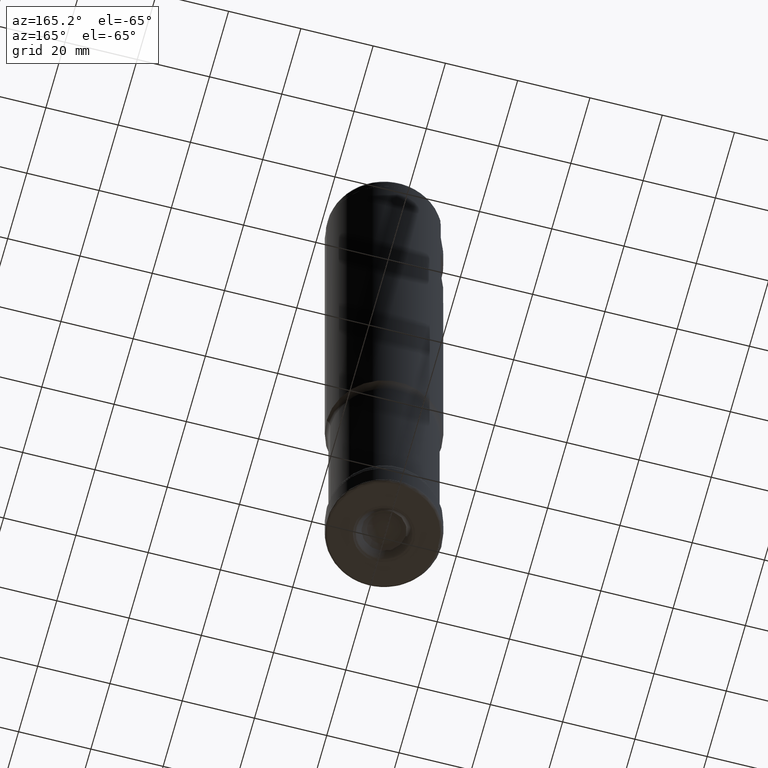
[diagram: clean part render]
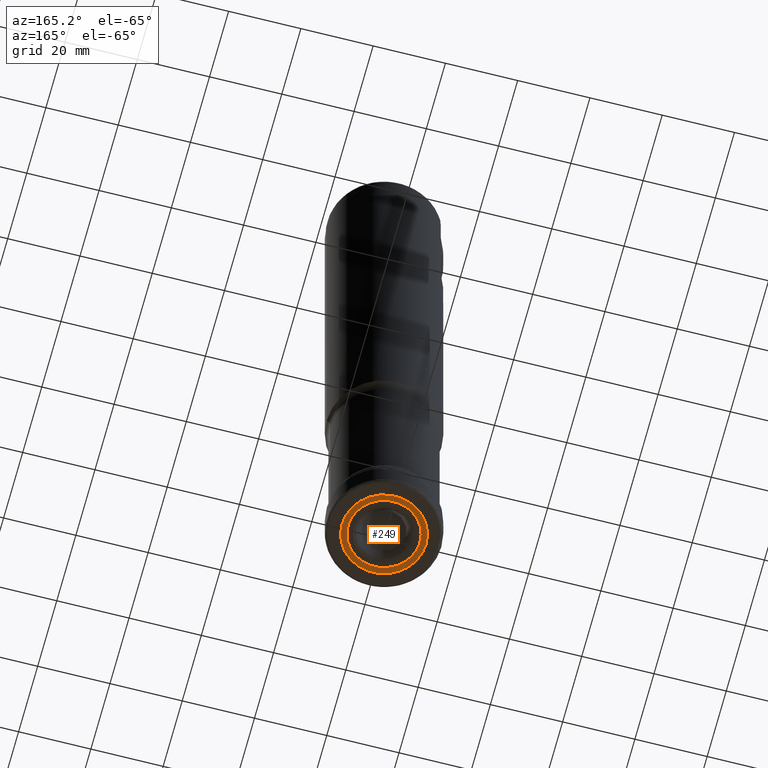
[diagram: same view with one face highlighted and labeled with its STEP entity id]
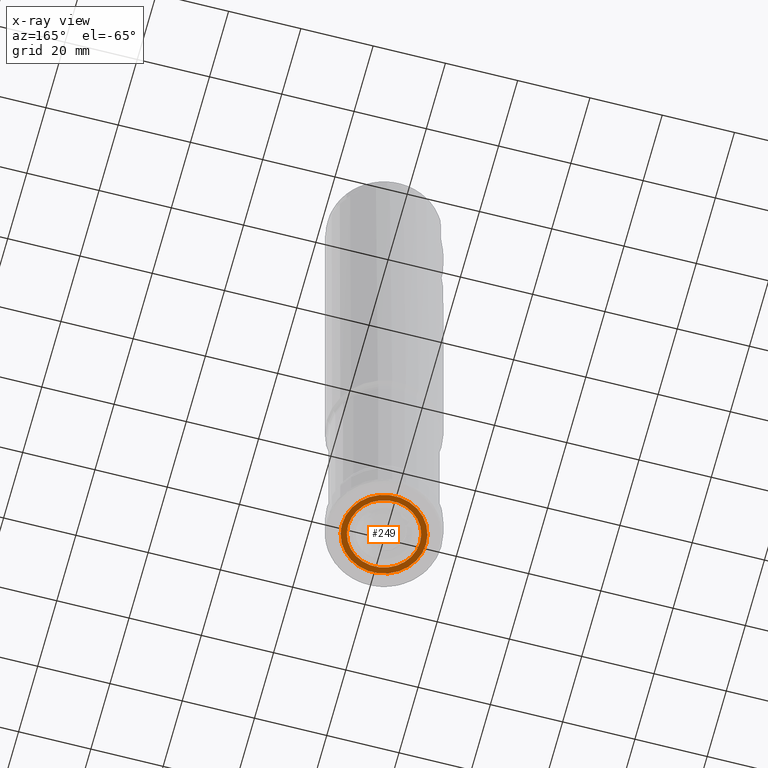
[diagram: x-ray of the same camera — body ghosted, the highlighted face saturated]
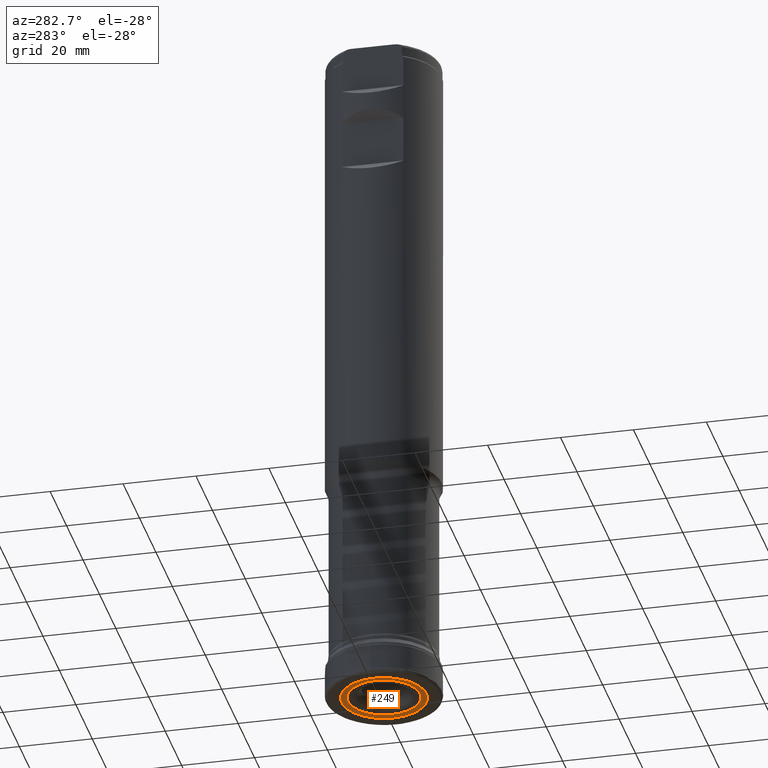
[diagram: same view with one face highlighted and labeled with its STEP entity id]
A machine part, auxiliary view. The second image highlights one B-rep face of the part: STEP entity #249.
The next image is the same camera in x-ray: the body ghosted, the highlighted face saturated — about 0% of this face is hidden behind the body in this view.
A second angle (auxiliary view) of the same face is appended — the face is thin or edge-on in the first view.
In plain terms, the highlighted face is a SurfaceOfRevolution surface.
Its self-contained STEP definition (entity closure, byte-faithful):
#112=SURFACE_OF_REVOLUTION('',#952,#151);
#151=AXIS1_PLACEMENT('',#2190,#1158);
#249=ADVANCED_FACE('',(#353,#354),#112,.F.);
#353=FACE_BOUND('',#467,.T.);
#354=FACE_BOUND('',#468,.T.);
#467=EDGE_LOOP('',(#627));
#468=EDGE_LOOP('',(#628));
#627=ORIENTED_EDGE('',*,*,#813,.T.);
#628=ORIENTED_EDGE('',*,*,#814,.F.);
#733=VERTEX_POINT('',#2174);
#734=VERTEX_POINT('',#2183);
#813=EDGE_CURVE('',#733,#733,#862,.T.);
#814=EDGE_CURVE('',#734,#734,#863,.T.);
#862=CIRCLE('',#1026,11.6420137079246);
#863=CIRCLE('',#1027,9.94068885266798);
#952=B_SPLINE_CURVE_WITH_KNOTS('',5,(#2184,#2185,#2186,#2187,#2188,#2189),
 .UNSPECIFIED.,.F.,.F.,(6,6),(0.,1.),.UNSPECIFIED.);
#1026=AXIS2_PLACEMENT_3D('',#2173,#1153,#1154);
#1027=AXIS2_PLACEMENT_3D('',#2182,#1156,#1157);
#1153=DIRECTION('',(0.,0.,-1.));
#1154=DIRECTION('',(-1.,0.,0.));
#1156=DIRECTION('',(0.,0.,-1.));
#1157=DIRECTION('',(-1.,0.,0.));
#1158=DIRECTION('',(0.,0.,-1.));
#2173=CARTESIAN_POINT('',(0.,0.,0.0730724471815463));
#2174=CARTESIAN_POINT('',(-11.6420137079246,0.,0.0730724471815463));
#2182=CARTESIAN_POINT('',(0.,0.,0.257573474107855));
#2183=CARTESIAN_POINT('',(-9.94068885266798,0.,0.257573474107855));
#2184=CARTESIAN_POINT('',(-4.97034442633404,-8.60888907752723,0.257573474107855));
#2185=CARTESIAN_POINT('',(-5.14045022814163,-8.90352096892023,0.220184835990095));
#2186=CARTESIAN_POINT('',(-5.31057215064622,-9.19818078217947,0.183089528690482));
#2187=CARTESIAN_POINT('',(-5.48070684799947,-9.49286272212566,0.146228502387511));
#2188=CARTESIAN_POINT('',(-5.65085229849574,-9.78756328706189,0.10956555051383));
#2189=CARTESIAN_POINT('',(-5.82100685396234,-10.0822796222693,0.0730724471815463));
#2190=CARTESIAN_POINT('',(0.,0.,0.));